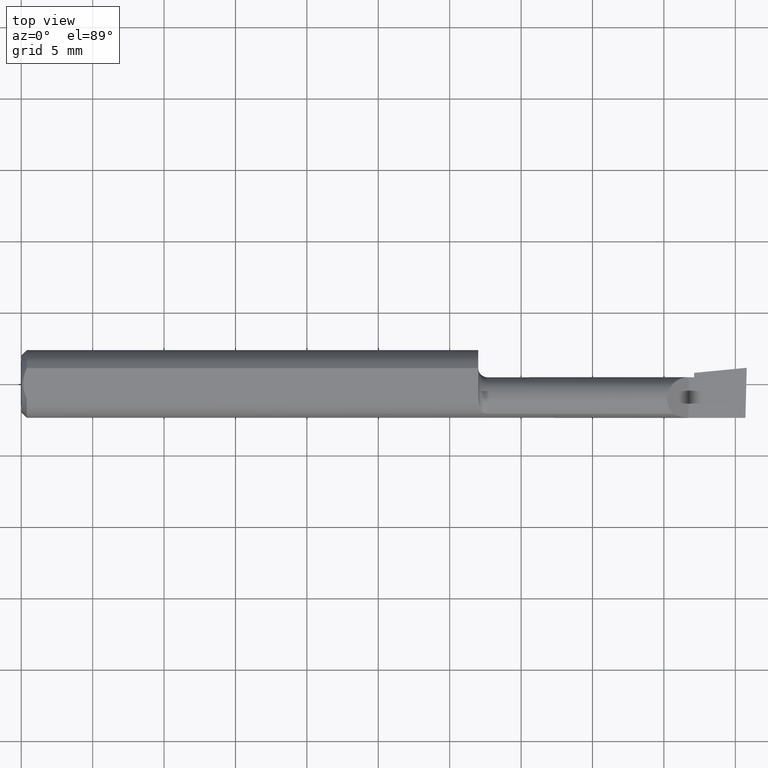
[diagram: clean part render]
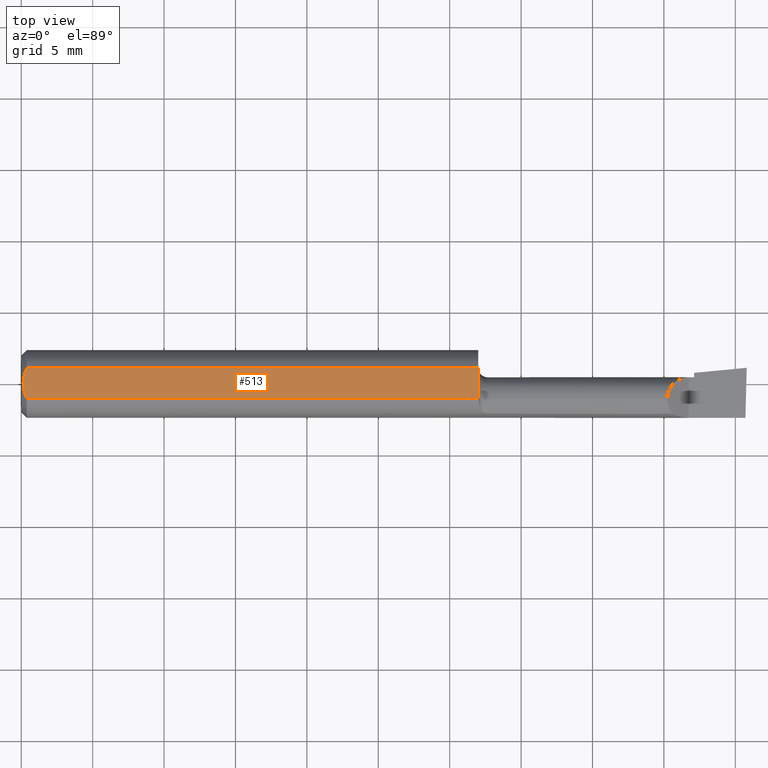
[diagram: same view with one face highlighted and labeled with its STEP entity id]
A machine part, top view. The second image highlights one B-rep face of the part: STEP entity #513.
In plain terms, the highlighted planar face has unit normal (0, -0, -1).
Its self-contained STEP definition (entity closure, byte-faithful):
#19 = VERTEX_POINT ( 'NONE', #26 ) ;
#26 = CARTESIAN_POINT ( 'NONE',  ( 0.005000000000000236026, 1.025183009042025117E-17, 0.08360000000000000764 ) ) ;
#46 = LINE ( 'NONE', #242, #625 ) ;
#48 = DIRECTION ( 'NONE',  ( 0.0000000000000000000, -1.189000693621284344E-16, -1.000000000000000000 ) ) ;
#52 = CARTESIAN_POINT ( 'NONE',  ( 1.260033822879743415, -0.04150000000000000216, 0.08360000000000000764 ) ) ;
#66 = ORIENTED_EDGE ( 'NONE', *, *, #370, .F. ) ;
#70 = ORIENTED_EDGE ( 'NONE', *, *, #525, .F. ) ;
#73 = CARTESIAN_POINT ( 'NONE',  ( 0.01499999999999999944, -0.04209513035969835587, 0.08360000000000000764 ) ) ;
#77 = CARTESIAN_POINT ( 'NONE',  ( 0.01499999999999999598, 0.04209513035969837669, 0.08360000000000000764 ) ) ;
#82 = VERTEX_POINT ( 'NONE', #604 ) ;
#95 = CARTESIAN_POINT ( 'NONE',  ( 1.260033822879743193, -0.04159918775969437960, 0.08360000000000000764 ) ) ;
#97 = CARTESIAN_POINT ( 'NONE',  ( 2.000000000000000000, 0.1436000000000000332, 0.08359999999999999376 ) ) ;
#98 = CARTESIAN_POINT ( 'NONE',  ( 1.260033822879743415, -0.04150000000000000216, 0.08360000000000000764 ) ) ;
#99 = CARTESIAN_POINT ( 'NONE',  ( 1.259999999999999565, 0.04209513035969836975, 0.08360000000000000764 ) ) ;
#104 = EDGE_CURVE ( 'NONE', #596, #82, #607, .T. ) ;
#106 = CARTESIAN_POINT ( 'NONE',  ( 1.260010473476444126, -0.03163306423249844651, 0.08360000000000000764 ) ) ;
#122 = ORIENTED_EDGE ( 'NONE', *, *, #373, .F. ) ;
#123 = B_SPLINE_CURVE_WITH_KNOTS ( 'NONE', 3,
 ( #179, #182, #581, #224, #324, #77 ),
 .UNSPECIFIED., .F., .F.,
 ( 4, 2, 4 ),
 ( 0.006881281100865560205, 0.007427683811376459971, 0.007974086521887359738 ),
 .UNSPECIFIED. ) ;
#128 = CARTESIAN_POINT ( 'NONE',  ( 0.005000000000000227353, -0.007328888879231044290, 0.08360000000000000764 ) ) ;
#130 = VERTEX_POINT ( 'NONE', #652 ) ;
#153 = VECTOR ( 'NONE', #501, 39.37007874015748143 ) ;
#169 = LINE ( 'NONE', #556, #550 ) ;
#179 = CARTESIAN_POINT ( 'NONE',  ( 0.005000000000000236026, 1.025183009042025117E-17, 0.08360000000000000764 ) ) ;
#181 = AXIS2_PLACEMENT_3D ( 'NONE', #97, #48, #457 ) ;
#182 = CARTESIAN_POINT ( 'NONE',  ( 0.005000000000000225618, 0.007308422719211825694, 0.08360000000000000764 ) ) ;
#224 = CARTESIAN_POINT ( 'NONE',  ( 0.009492654797564338900, 0.02859466010166627700, 0.08360000000000000764 ) ) ;
#236 = VERTEX_POINT ( 'NONE', #399 ) ;
#242 = CARTESIAN_POINT ( 'NONE',  ( 0.0000000000000000000, 0.04209513035969837669, 0.08360000000000000764 ) ) ;
#300 = DIRECTION ( 'NONE',  ( -1.000000000000000000, -0.0000000000000000000, -0.0000000000000000000 ) ) ;
#304 = PLANE ( 'NONE',  #181 ) ;
#321 = CARTESIAN_POINT ( 'NONE',  ( 0.005000000000000236026, 1.025183009042025117E-17, 0.08360000000000000764 ) ) ;
#324 = CARTESIAN_POINT ( 'NONE',  ( 0.01203648650249651043, 0.03550565407121124978, 0.08360000000000000764 ) ) ;
#350 = CARTESIAN_POINT ( 'NONE',  ( 1.260027419345087329, -0.03656676420729541160, 0.08359999999999997988 ) ) ;
#354 = CARTESIAN_POINT ( 'NONE',  ( 1.260033822879743415, -0.03903342675892663982, 0.08360000000000000764 ) ) ;
#357 = ORIENTED_EDGE ( 'NONE', *, *, #465, .F. ) ;
#370 = EDGE_CURVE ( 'NONE', #375, #19, #522, .T. ) ;
#373 = EDGE_CURVE ( 'NONE', #19, #236, #123, .T. ) ;
#375 = VERTEX_POINT ( 'NONE', #529 ) ;
#381 = LINE ( 'NONE', #608, #153 ) ;
#393 = CARTESIAN_POINT ( 'NONE',  ( 1.260033712670300066, -0.04209513035969835587, 0.08360000000000000764 ) ) ;
#398 = CARTESIAN_POINT ( 'NONE',  ( 1.260033749376515022, -0.04199594133387062750, 0.08360000000000003539 ) ) ;
#399 = CARTESIAN_POINT ( 'NONE',  ( 0.01499999999999999598, 0.04209513035969837669, 0.08360000000000000764 ) ) ;
#411 = CARTESIAN_POINT ( 'NONE',  ( 1.259999999999999565, -0.02669966216601840289, 0.08360000000000000764 ) ) ;
#419 = FACE_OUTER_BOUND ( 'NONE', #545, .T. ) ;
#457 = DIRECTION ( 'NONE',  ( 0.0000000000000000000, 1.000000000000000000, -1.189000693621284344E-16 ) ) ;
#465 = EDGE_CURVE ( 'NONE', #236, #599, #46, .T. ) ;
#470 = EDGE_CURVE ( 'NONE', #82, #375, #169, .T. ) ;
#474 = CARTESIAN_POINT ( 'NONE',  ( 0.009539353699420828961, -0.02875682547511369466, 0.08360000000000000764 ) ) ;
#494 = ORIENTED_EDGE ( 'NONE', *, *, #104, .F. ) ;
#496 = CARTESIAN_POINT ( 'NONE',  ( 1.260033822879743415, -0.04150000000000000216, 0.08360000000000000764 ) ) ;
#501 = DIRECTION ( 'NONE',  ( 0.0000000000000000000, -1.000000000000000000, 1.189000693621284344E-16 ) ) ;
#506 = CARTESIAN_POINT ( 'NONE',  ( 1.259999999999999565, -0.02916612216505930569, 0.08360000000000000764 ) ) ;
#513 = ADVANCED_FACE ( 'NONE', ( #419 ), #304, .F. ) ;
#522 = B_SPLINE_CURVE_WITH_KNOTS ( 'NONE', 3,
 ( #73, #531, #474, #634, #128, #321 ),
 .UNSPECIFIED., .F., .F.,
 ( 4, 2, 4 ),
 ( 0.005785415439423114564, 0.006333348270144337384, 0.006881281100865560205 ),
 .UNSPECIFIED. ) ;
#524 = EDGE_CURVE ( 'NONE', #130, #596, #627, .T. ) ;
#525 = EDGE_CURVE ( 'NONE', #599, #130, #381, .T. ) ;
#526 = ORIENTED_EDGE ( 'NONE', *, *, #524, .F. ) ;
#529 = CARTESIAN_POINT ( 'NONE',  ( 0.01499999999999999944, -0.04209513035969835587, 0.08360000000000000764 ) ) ;
#531 = CARTESIAN_POINT ( 'NONE',  ( 0.01206089165507025218, -0.03555991978469313225, 0.08360000000000000764 ) ) ;
#545 = EDGE_LOOP ( 'NONE', ( #526, #70, #357, #122, #66, #631, #494 ) ) ;
#550 = VECTOR ( 'NONE', #300, 39.37007874015748143 ) ;
#556 = CARTESIAN_POINT ( 'NONE',  ( 0.0000000000000000000, -0.04209513035969835587, 0.08360000000000000764 ) ) ;
#581 = CARTESIAN_POINT ( 'NONE',  ( 0.005981829149300843529, 0.01454044632356567453, 0.08360000000000003539 ) ) ;
#596 = VERTEX_POINT ( 'NONE', #98 ) ;
#599 = VERTEX_POINT ( 'NONE', #99 ) ;
#604 = CARTESIAN_POINT ( 'NONE',  ( 1.260033712670300066, -0.04209513035969835587, 0.08360000000000000764 ) ) ;
#605 = CARTESIAN_POINT ( 'NONE',  ( 1.260033804492674214, -0.04179756391332128951, 0.08360000000000000764 ) ) ;
#607 = B_SPLINE_CURVE_WITH_KNOTS ( 'NONE', 3,
 ( #496, #95, #605, #398, #393 ),
 .UNSPECIFIED., .F., .F.,
 ( 4, 1, 4 ),
 ( 0.001137327269498854699, 0.001144877036798491862, 0.001152426804098129025 ),
 .UNSPECIFIED. ) ;
#608 = CARTESIAN_POINT ( 'NONE',  ( 1.259999999999999565, 0.1436000000000000332, 0.08359999999999999376 ) ) ;
#610 = DIRECTION ( 'NONE',  ( 1.000000000000000000, 0.0000000000000000000, 0.0000000000000000000 ) ) ;
#625 = VECTOR ( 'NONE', #610, 39.37007874015748143 ) ;
#627 = B_SPLINE_CURVE_WITH_KNOTS ( 'NONE', 3,
 ( #411, #506, #106, #350, #354, #52 ),
 .UNSPECIFIED., .F., .F.,
 ( 4, 2, 4 ),
 ( 0.0007618363005527865450, 0.0009495817850258206219, 0.001137327269498854699 ),
 .UNSPECIFIED. ) ;
#631 = ORIENTED_EDGE ( 'NONE', *, *, #470, .F. ) ;
#634 = CARTESIAN_POINT ( 'NONE',  ( 0.005975039161239529238, -0.01453776427033147065, 0.08359999999999997988 ) ) ;
#652 = CARTESIAN_POINT ( 'NONE',  ( 1.259999999999999565, -0.02669966216601840289, 0.08360000000000000764 ) ) ;